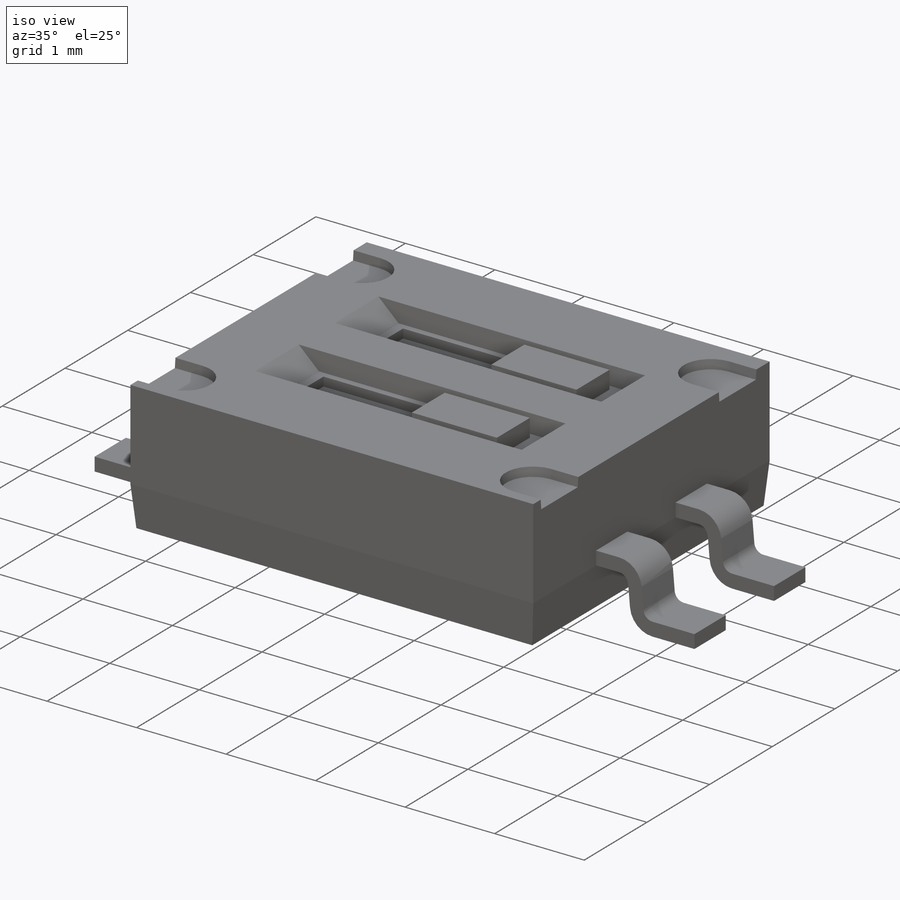
[diagram: iso view]
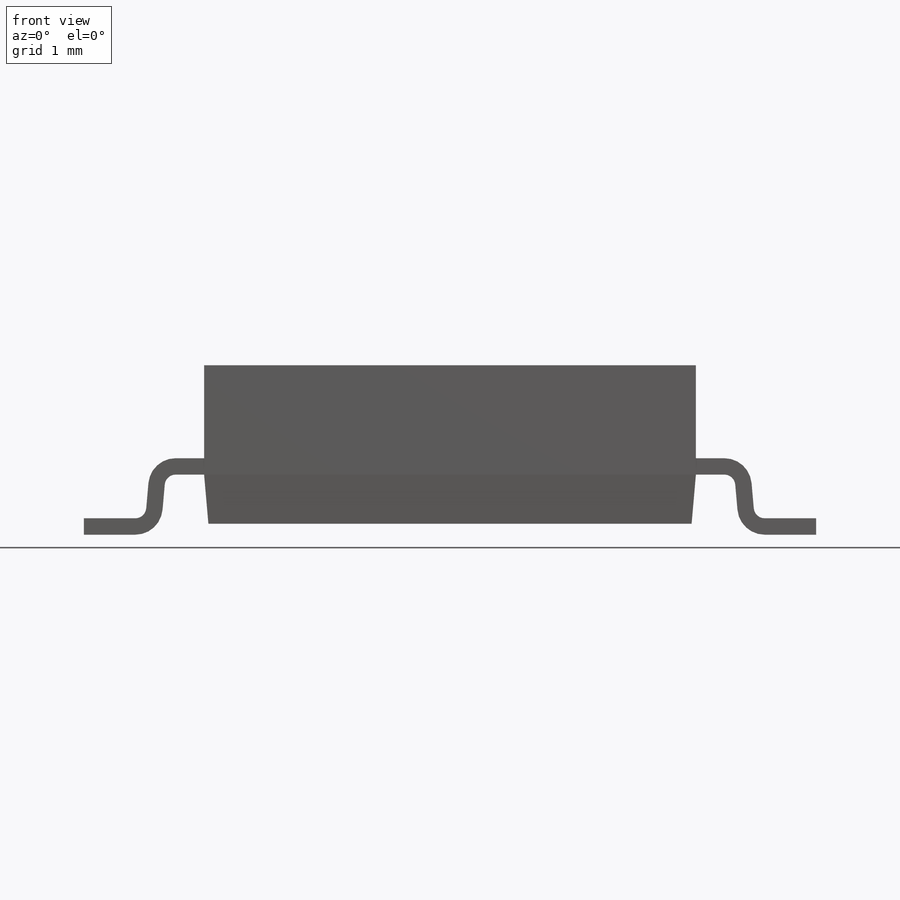
[diagram: front view]
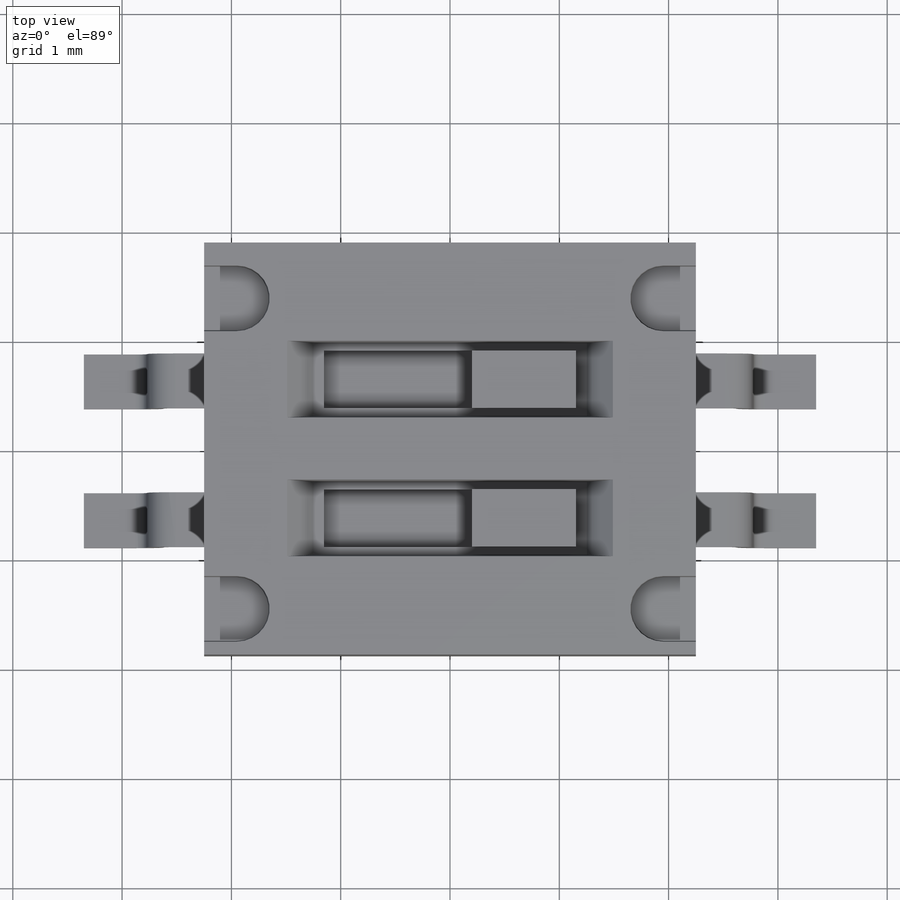
[diagram: top view]
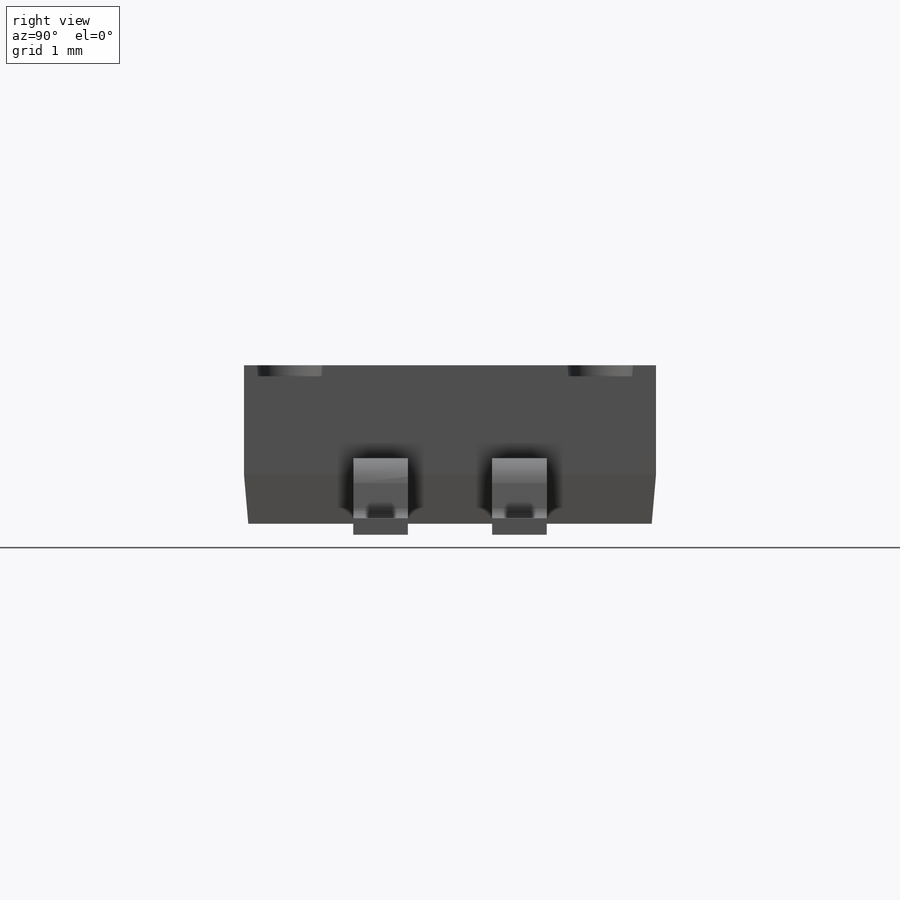
[diagram: right view]
SOLIDWORKS PART (.sldprt)
format: sldprt  version: not decoded by parser v0  size: 424,960 bytes
history: native  units: mm
features: sketch x7, extrude x3, cut_extrude x3, fillet x2, material x1, mirror x1, chamfer x1, plane x1 (+12 scaffold rows collapsed)
feature tree (31):
  scaffold x12  (default folders/planes/origin — collapsed)
  material  "Material <not specified>"
  sketch  "Sketch1"  dims[D1=3.77mm D2=4.5mm]
  extrude  "Extrude1"  Depth=1mm
  sketch  "Sketch2"  dims[c1.D1=0.15mm c1.D2=0.15mm c1.D3=0.15mm c1.D4=~1.986094mm c2.D4=95.0deg c2.D5=0.22mm c2.D6=0.7mm c2.D7=0.1mm c2.D8=6.7mm]
  extrude  "Extrude2"  Depth=0.25mm
  mirror  "Mirror1"
  fillet  "Fillet1"  Radius=0.1mm
  fillet  "Fillet2"  Radius=0.25mm
  sketch  "Sketch3"  dims[D1=0.6mm D2=3.77mm]
  cut_extrude  "Cut-Extrude2"  Depth=0.1mm
  sketch  "Sketch4"  dims[D1=1.27mm D2=0.7mm D3=2.54mm]
  cut_extrude  "Cut-Extrude3"  Depth=0.2mm
  chamfer  "Chamfer1"  Distance=0.2mm Angle=45deg
  sketch  "Sketch5"  dims[D1=0.07mm D2=0.07mm D3=0.1mm D4=0.1mm]
  cut_extrude  "Cut-Extrude4"  Depth=0.1mm
  sketch  "Sketch6"  dims[D1=0.95mm]
  extrude  "Extrude3"  Depth=0.3mm
  plane  "Board Plane"  Offset=0.55mm
  sketch  "Component_Outline"
decode coverage: 15 of 17 modeling features carry decoded parameters
note: ~ marks probable driven/reference dimensions
note: suppression state not decoded; provenance and decode notes live in map.json
